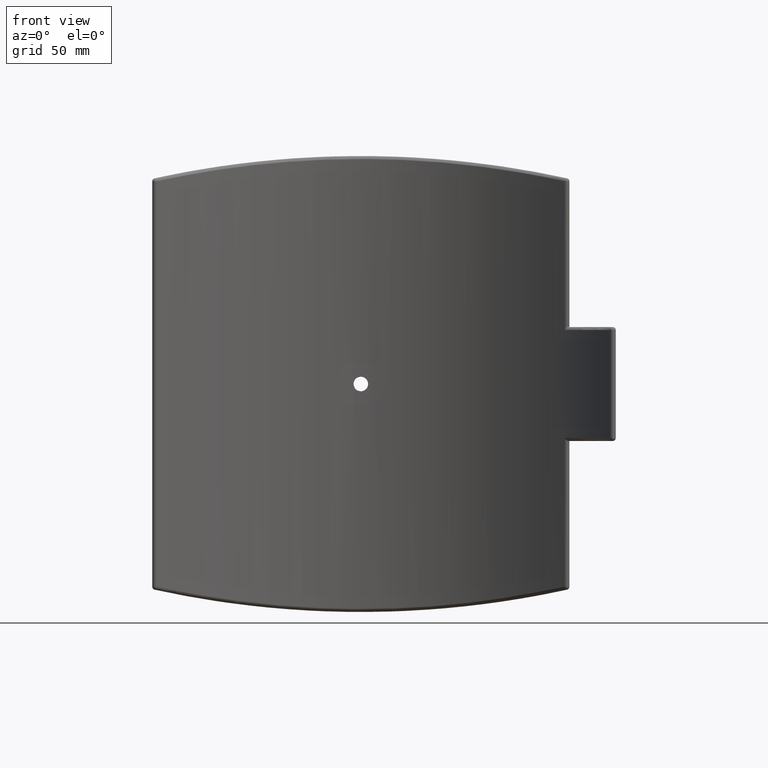
[diagram: clean part render]
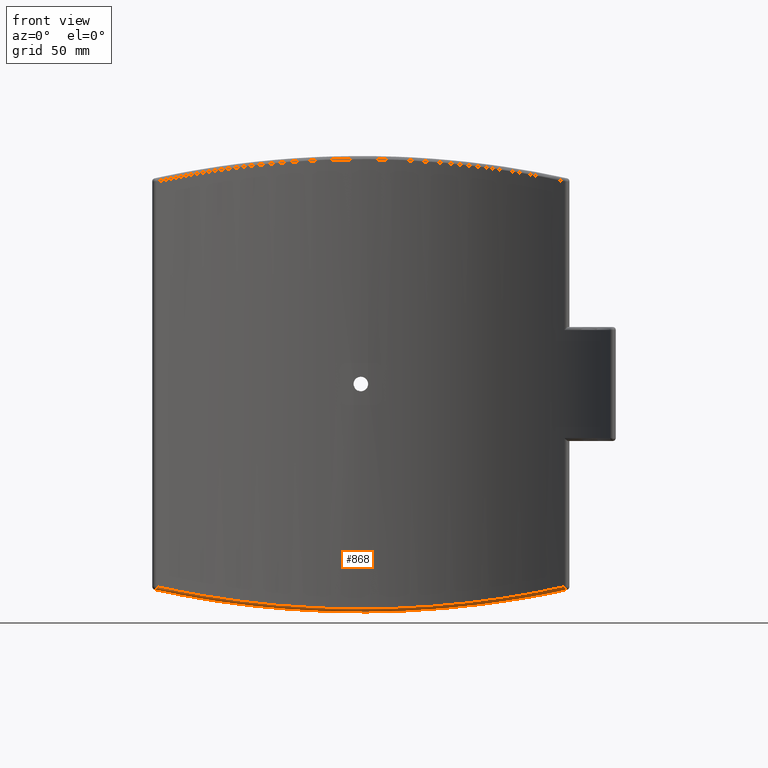
[diagram: same view with one face highlighted and labeled with its STEP entity id]
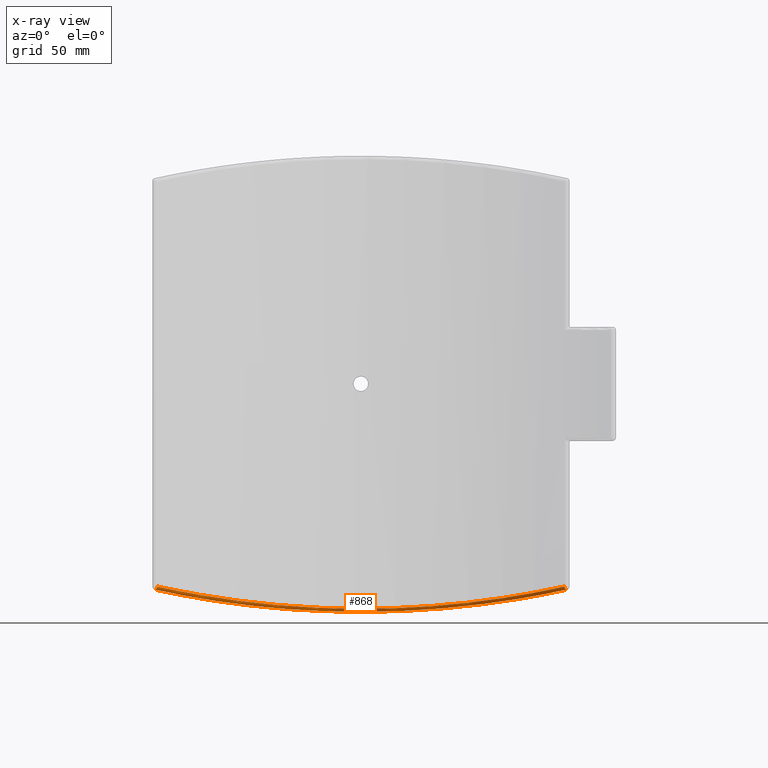
[diagram: x-ray of the same camera — body ghosted, the highlighted face saturated]
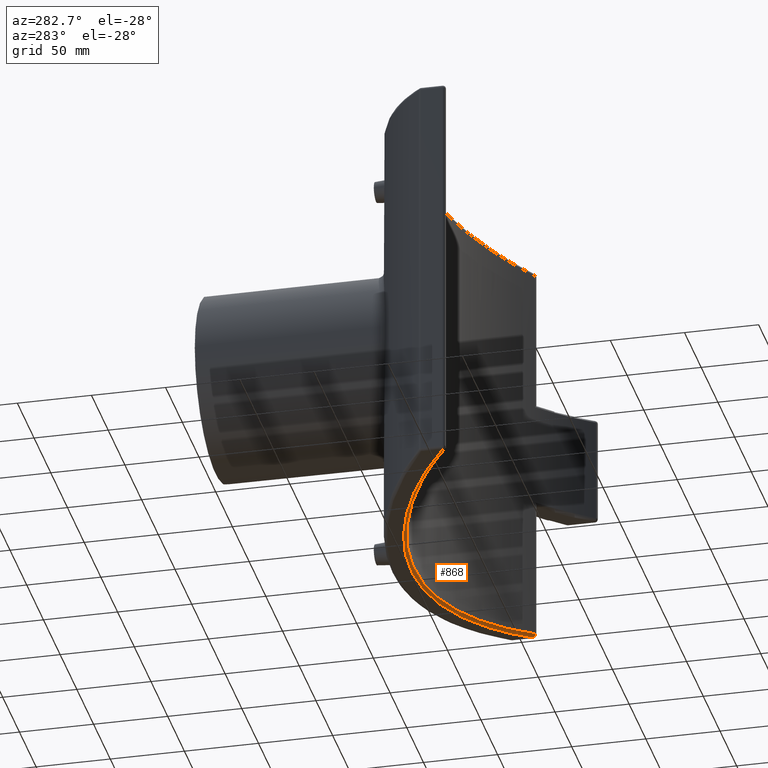
[diagram: same view with one face highlighted and labeled with its STEP entity id]
A machine part, front view. The second image highlights one B-rep face of the part: STEP entity #868.
The next image is the same camera in x-ray: the body ghosted, the highlighted face saturated — about 0% of this face is hidden behind the body in this view.
A second angle (auxiliary view) of the same face is appended — the face is thin or edge-on in the first view.
In plain terms, the highlighted face is a freeform B-spline surface patch.
Its self-contained STEP definition (entity closure, byte-faithful):
#93=B_SPLINE_SURFACE_WITH_KNOTS('',3,3,((#2136,#2137,#2138,#2139,#2140,
#2141,#2142,#2143,#2144,#2145),(#2146,#2147,#2148,#2149,#2150,#2151,#2152,
#2153,#2154,#2155),(#2156,#2157,#2158,#2159,#2160,#2161,#2162,#2163,#2164,
#2165),(#2166,#2167,#2168,#2169,#2170,#2171,#2172,#2173,#2174,#2175),(#2176,
#2177,#2178,#2179,#2180,#2181,#2182,#2183,#2184,#2185),(#2186,#2187,#2188,
#2189,#2190,#2191,#2192,#2193,#2194,#2195)),.UNSPECIFIED.,.F.,.F.,.F.,(4,
1,1,4),(4,1,1,1,1,1,1,4),(0.,0.285714285714286,0.571428571428571,1.),(3.73407765007693,
7.99343956303935,12.2528014760018,16.5121633889642,20.7715253019266,25.030887214889,
29.2902491278514,33.5496110408139),.UNSPECIFIED.);
#112=B_SPLINE_CURVE_WITH_KNOTS('',3,(#2196,#2197,#2198,#2199,#2200,#2201,
#2202,#2203,#2204,#2205),.UNSPECIFIED.,.F.,.F.,(4,1,1,1,1,1,1,4),(-33.5496110408139,
-29.2902491278514,-25.030887214889,-20.7715253019266,-16.5121633889642,
-12.2528014760018,-7.99343956303935,-3.73407765007693),.UNSPECIFIED.);
#113=B_SPLINE_CURVE_WITH_KNOTS('',3,(#2206,#2207,#2208,#2209,#2210,#2211,
#2212,#2213,#2214,#2215),.UNSPECIFIED.,.F.,.F.,(4,1,1,1,1,1,1,4),(3.73407765013763,
7.99343956308547,12.2528014760333,16.5121633889811,20.771525301929,25.0308872148768,
29.2902491278246,33.5496110407725),.UNSPECIFIED.);
#231=FACE_OUTER_BOUND('',#318,.T.);
#318=EDGE_LOOP('',(#745,#746,#747,#748));
#358=CIRCLE('',#932,1.99999999999997);
#365=CIRCLE('',#942,2.00000000000001);
#432=VERTEX_POINT('',#1782);
#433=VERTEX_POINT('',#1784);
#438=VERTEX_POINT('',#1860);
#439=VERTEX_POINT('',#1861);
#507=EDGE_CURVE('',#432,#433,#358,.F.);
#515=EDGE_CURVE('',#438,#439,#365,.F.);
#571=EDGE_CURVE('',#433,#438,#112,.T.);
#572=EDGE_CURVE('',#439,#432,#113,.T.);
#745=ORIENTED_EDGE('',*,*,#507,.T.);
#746=ORIENTED_EDGE('',*,*,#571,.T.);
#747=ORIENTED_EDGE('',*,*,#515,.T.);
#748=ORIENTED_EDGE('',*,*,#572,.T.);
#868=ADVANCED_FACE('',(#231),#93,.F.);
#932=AXIS2_PLACEMENT_3D('',#1786,#1111,#1112);
#942=AXIS2_PLACEMENT_3D('',#1862,#1131,#1132);
#1111=DIRECTION('center_axis',(0.733164606189552,-0.660902128187636,0.160243680649107));
#1112=DIRECTION('ref_axis',(0.213523833955834,8.88178419700138E-15,-0.976937854898049));
#1131=DIRECTION('center_axis',(-0.73316460601081,-0.660902128470696,0.160243680299468));
#1132=DIRECTION('ref_axis',(0.669554455445539,-0.742762971070198,0.));
#1782=CARTESIAN_POINT('',(135.677047667913,150.038120156787,-135.345880586893));
#1784=CARTESIAN_POINT('',(133.910891089109,148.552594214039,-133.392004877097));
#1786=CARTESIAN_POINT('Origin',(135.249999999516,150.038120156615,-133.392004877203));
#1860=CARTESIAN_POINT('',(-133.910891089109,148.552594214039,-133.392004877097));
#1861=CARTESIAN_POINT('',(-135.677047667467,150.03812015658,-135.34588058699));
#1862=CARTESIAN_POINT('Origin',(-135.25,150.038120156179,-133.392004877097));
#2136=CARTESIAN_POINT('Ctrl Pts',(-135.677047667913,150.038120156179,-135.345880586893));
#2137=CARTESIAN_POINT('Ctrl Pts',(-125.234981340627,159.421363860409,-137.628144525641));
#2138=CARTESIAN_POINT('Ctrl Pts',(-102.369183429352,176.033169963639,-142.069996955232));
#2139=CARTESIAN_POINT('Ctrl Pts',(-63.4403001218187,193.413762488495,-147.266476379752));
#2140=CARTESIAN_POINT('Ctrl Pts',(-21.4963233752752,202.373238138372,-150.118801649909));
#2141=CARTESIAN_POINT('Ctrl Pts',(21.495814024121,202.372023464455,-150.117521855396));
#2142=CARTESIAN_POINT('Ctrl Pts',(63.4410699993425,193.414641481691,-147.26749137854));
#2143=CARTESIAN_POINT('Ctrl Pts',(102.368101187893,176.033032253015,-142.069505587866));
#2144=CARTESIAN_POINT('Ctrl Pts',(125.234803078303,159.421524046985,-137.628183487438));
#2145=CARTESIAN_POINT('Ctrl Pts',(135.677047667923,150.03812015617,-135.345880586891));
#2146=CARTESIAN_POINT('Ctrl Pts',(-135.466223747786,149.793072615361,-135.39195919004));
#2147=CARTESIAN_POINT('Ctrl Pts',(-125.042244326782,159.164955680468,-137.666534385649));
#2148=CARTESIAN_POINT('Ctrl Pts',(-102.214464338669,175.758404907702,-142.094030792063));
#2149=CARTESIAN_POINT('Ctrl Pts',(-63.3460920428444,193.122172389374,-147.274567833978));
#2150=CARTESIAN_POINT('Ctrl Pts',(-21.4646925548912,202.073708465199,-150.118446190689));
#2151=CARTESIAN_POINT('Ctrl Pts',(21.4641835034242,202.072490555143,-150.117174808229));
#2152=CARTESIAN_POINT('Ctrl Pts',(63.3468617889938,193.123054112523,-147.275575929669));
#2153=CARTESIAN_POINT('Ctrl Pts',(102.213382434273,175.758265428102,-142.093541200354));
#2154=CARTESIAN_POINT('Ctrl Pts',(125.04206637323,159.1651156731,-137.666573216188));
#2155=CARTESIAN_POINT('Ctrl Pts',(135.466223747796,149.793072615352,-135.391959190038));
#2156=CARTESIAN_POINT('Ctrl Pts',(-135.010572410693,149.303993064092,-135.32435142809));
#2157=CARTESIAN_POINT('Ctrl Pts',(-124.62631729858,158.653157789595,-137.587256086554));
#2158=CARTESIAN_POINT('Ctrl Pts',(-101.881452670191,175.209872536072,-141.993005742335));
#2159=CARTESIAN_POINT('Ctrl Pts',(-63.1440230703601,192.539943431288,-147.14977927227));
#2160=CARTESIAN_POINT('Ctrl Pts',(-21.3969511447007,201.475568938487,-149.981153352697));
#2161=CARTESIAN_POINT('Ctrl Pts',(21.396444168729,201.474342607609,-149.979882919459));
#2162=CARTESIAN_POINT('Ctrl Pts',(63.1447931254055,192.540831597199,-147.150786132214));
#2163=CARTESIAN_POINT('Ctrl Pts',(101.880380630541,175.209729810529,-141.992518153115));
#2164=CARTESIAN_POINT('Ctrl Pts',(124.626140023183,158.653317394389,-137.587294717859));
#2165=CARTESIAN_POINT('Ctrl Pts',(135.010572410703,149.303993064083,-135.324351428088));
#2166=CARTESIAN_POINT('Ctrl Pts',(-134.276680867948,148.646843249766,-134.676890059353));
#2167=CARTESIAN_POINT('Ctrl Pts',(-123.953565667607,157.96046832935,-136.936104139928));
#2168=CARTESIAN_POINT('Ctrl Pts',(-101.339042119551,174.456833768009,-141.335004335807));
#2169=CARTESIAN_POINT('Ctrl Pts',(-62.8124198605073,191.727395668932,-146.484274488999));
#2170=CARTESIAN_POINT('Ctrl Pts',(-21.285432785236,200.633492502036,-149.311701356881));
#2171=CARTESIAN_POINT('Ctrl Pts',(21.2849248692763,200.632267433931,-149.310433668565));
#2172=CARTESIAN_POINT('Ctrl Pts',(62.8131900699494,191.728284533261,-146.485279135922));
#2173=CARTESIAN_POINT('Ctrl Pts',(101.337961026472,174.456688148289,-141.334517437045));
#2174=CARTESIAN_POINT('Ctrl Pts',(123.953389435964,157.960627327427,-136.936142708228));
#2175=CARTESIAN_POINT('Ctrl Pts',(134.276680867958,148.646843249757,-134.676890059351));
#2176=CARTESIAN_POINT('Ctrl Pts',(-133.969187015907,148.500044074839,-133.875462376056));
#2177=CARTESIAN_POINT('Ctrl Pts',(-123.665183455842,157.796025542908,-136.144443378462));
#2178=CARTESIAN_POINT('Ctrl Pts',(-101.095528659326,174.257526168381,-140.561339733902));
#2179=CARTESIAN_POINT('Ctrl Pts',(-62.6573549840419,191.48675216558,-145.729676657817));
#2180=CARTESIAN_POINT('Ctrl Pts',(-21.2320345847344,200.370078968086,-148.566966217882));
#2181=CARTESIAN_POINT('Ctrl Pts',(21.2315373124834,200.368849136973,-148.565705821952));
#2182=CARTESIAN_POINT('Ctrl Pts',(62.6581197128417,191.487638627843,-145.730675420462));
#2183=CARTESIAN_POINT('Ctrl Pts',(101.094499118995,174.257388162903,-140.560852148149));
#2184=CARTESIAN_POINT('Ctrl Pts',(123.665007550464,157.796184239781,-136.144482113499));
#2185=CARTESIAN_POINT('Ctrl Pts',(133.969187015917,148.50004407483,-133.875462376054));
#2186=CARTESIAN_POINT('Ctrl Pts',(-133.910891089109,148.552594214039,-133.392004877097));
#2187=CARTESIAN_POINT('Ctrl Pts',(-123.604752867993,157.842934515257,-135.667085320115));
#2188=CARTESIAN_POINT('Ctrl Pts',(-101.036607213343,174.290267290732,-140.09495688298));
#2189=CARTESIAN_POINT('Ctrl Pts',(-62.614475081052,191.498774741084,-145.275080229167));
#2190=CARTESIAN_POINT('Ctrl Pts',(-21.2164980577146,200.36954271126,-148.118427718073));
#2191=CARTESIAN_POINT('Ctrl Pts',(21.2159953369663,200.368340063816,-148.117151951753));
#2192=CARTESIAN_POINT('Ctrl Pts',(62.6152349368051,191.499645031378,-145.276092033215));
#2193=CARTESIAN_POINT('Ctrl Pts',(101.035539059808,174.290130943579,-140.094467062208));
#2194=CARTESIAN_POINT('Ctrl Pts',(123.604576926173,157.843093115826,-135.667124159279));
#2195=CARTESIAN_POINT('Ctrl Pts',(133.910891089119,148.55259421403,-133.392004877095));
#2196=CARTESIAN_POINT('Ctrl Pts',(133.910891089119,148.55259421403,-133.392004877095));
#2197=CARTESIAN_POINT('Ctrl Pts',(123.604576926173,157.843093115826,-135.667124159279));
#2198=CARTESIAN_POINT('Ctrl Pts',(101.035539059808,174.290130943579,-140.094467062208));
#2199=CARTESIAN_POINT('Ctrl Pts',(62.6152349368051,191.499645031378,-145.276092033215));
#2200=CARTESIAN_POINT('Ctrl Pts',(21.2159953369663,200.368340063816,-148.117151951753));
#2201=CARTESIAN_POINT('Ctrl Pts',(-21.2164980577146,200.36954271126,-148.118427718073));
#2202=CARTESIAN_POINT('Ctrl Pts',(-62.614475081052,191.498774741084,-145.275080229167));
#2203=CARTESIAN_POINT('Ctrl Pts',(-101.036607213343,174.290267290732,-140.09495688298));
#2204=CARTESIAN_POINT('Ctrl Pts',(-123.604752867993,157.842934515257,-135.667085320115));
#2205=CARTESIAN_POINT('Ctrl Pts',(-133.910891089109,148.552594214039,-133.392004877097));
#2206=CARTESIAN_POINT('Ctrl Pts',(-135.677047667467,150.03812015658,-135.34588058699));
#2207=CARTESIAN_POINT('Ctrl Pts',(-125.234981340152,159.42136386078,-137.628144525737));
#2208=CARTESIAN_POINT('Ctrl Pts',(-102.369183429352,176.033169963639,-142.069996955232));
#2209=CARTESIAN_POINT('Ctrl Pts',(-63.4403001218187,193.413762488495,-147.266476379752));
#2210=CARTESIAN_POINT('Ctrl Pts',(-21.4963233752752,202.373238138372,-150.118801649909));
#2211=CARTESIAN_POINT('Ctrl Pts',(21.495814024121,202.372023464455,-150.117521855396));
#2212=CARTESIAN_POINT('Ctrl Pts',(63.4410699993425,193.414641481691,-147.26749137854));
#2213=CARTESIAN_POINT('Ctrl Pts',(102.368101187893,176.033032253015,-142.069505587866));
#2214=CARTESIAN_POINT('Ctrl Pts',(125.234803077979,159.421524047237,-137.628183487504));
#2215=CARTESIAN_POINT('Ctrl Pts',(135.677047667619,150.038120156443,-135.345880586957));